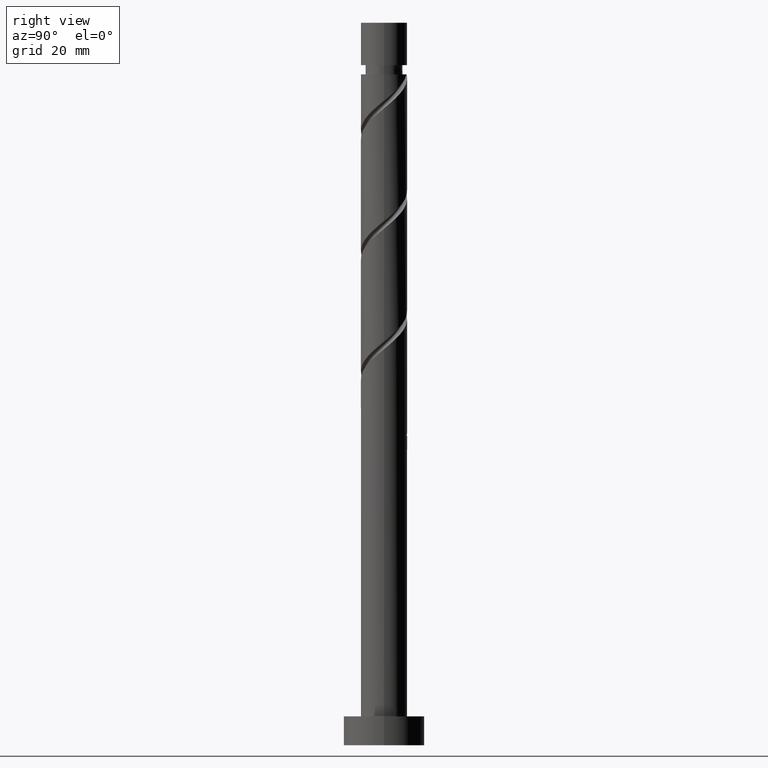
[diagram: clean part render]
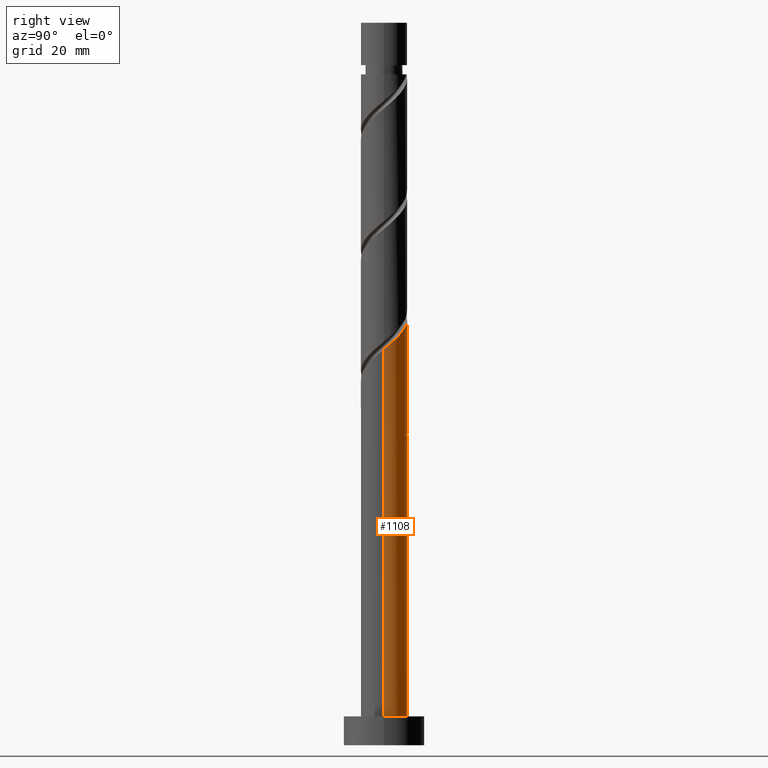
[diagram: same view with one face highlighted and labeled with its STEP entity id]
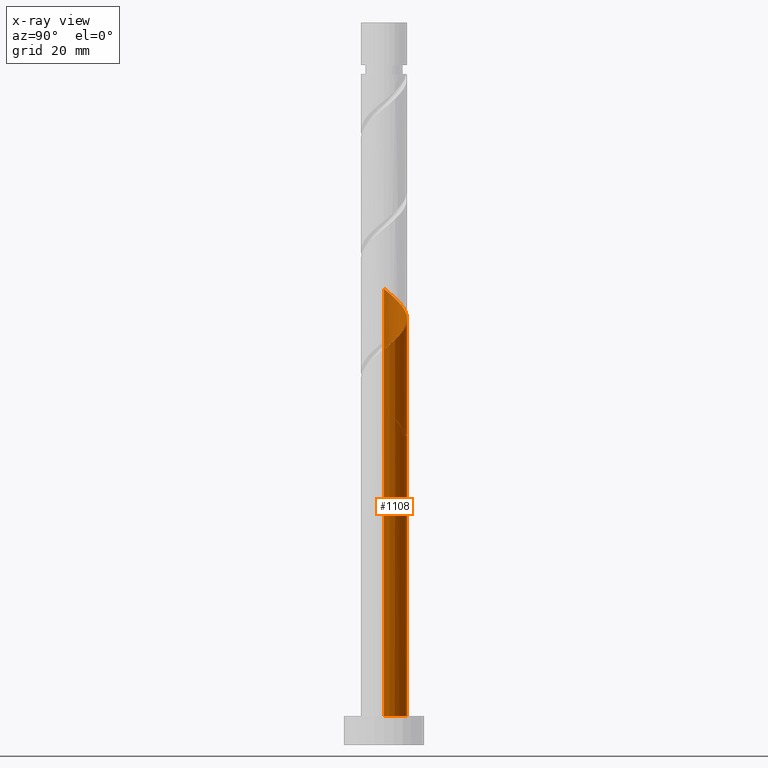
[diagram: x-ray of the same camera — body ghosted, the highlighted face saturated]
A machine part, right view. The second image highlights one B-rep face of the part: STEP entity #1108.
The next image is the same camera in x-ray: the body ghosted, the highlighted face saturated — about 0% of this face is hidden behind the body in this view.
In plain terms, the highlighted cylindrical surface (edge-blend (fillet) strip) has radius 4 mm, axis along (-0, -0, -1).
Its self-contained STEP definition (entity closure, byte-faithful):
#14 = ORIENTED_EDGE ( 'NONE', *, *, #703, .F. ) ;
#59 = CARTESIAN_POINT ( 'NONE',  ( 0.7959899496852967937, 3.920000000000000817, 53.57348467915947055 ) ) ;
#67 = CARTESIAN_POINT ( 'NONE',  ( 4.000000000000005329, 2.698758500977031023E-15, 68.53368223768919165 ) ) ;
#71 = ORIENTED_EDGE ( 'NONE', *, *, #156, .F. ) ;
#108 = CARTESIAN_POINT ( 'NONE',  ( 1.083753322405400121, 3.902159508677979005, 72.84431801249277783 ) ) ;
#116 = CARTESIAN_POINT ( 'NONE',  ( -3.376276034017707151, 2.236544262273469030, 77.01098467915942081 ) ) ;
#118 = DIRECTION ( 'NONE',  ( -0.000000000000000000, -0.000000000000000000, -1.000000000000000000 ) ) ;
#136 = VERTEX_POINT ( 'NONE', #584 ) ;
#139 = DIRECTION ( 'NONE',  ( -1.000000000000000000, 0.000000000000000000, 0.000000000000000000 ) ) ;
#156 = EDGE_CURVE ( 'NONE', #184, #136, #606, .T. ) ;
#168 = CARTESIAN_POINT ( 'NONE',  ( -4.000000000000006217, -3.238510201172437228E-15, 78.95034890435586306 ) ) ;
#173 = EDGE_CURVE ( 'NONE', #1510, #1399, #1237, .T. ) ;
#181 = CARTESIAN_POINT ( 'NONE',  ( -4.000000000000000000, 0.000000000000000000, 5.000000000000000000 ) ) ;
#183 = CARTESIAN_POINT ( 'NONE',  ( -1.660148792339431134, 3.639217771347837971, 55.65681801249279204 ) ) ;
#184 = VERTEX_POINT ( 'NONE', #228 ) ;
#194 = CARTESIAN_POINT ( 'NONE',  ( 0.000000000000000000, 0.000000000000000000, 125.0000000000000000 ) ) ;
#196 = CARTESIAN_POINT ( 'NONE',  ( -2.236544262273464589, 3.376276034017703598, 56.17765134582614905 ) ) ;
#200 = CARTESIAN_POINT ( 'NONE',  ( -1.416856955757479053, 3.793927577315143740, 54.09431801249279204 ) ) ;
#201 = VERTEX_POINT ( 'NONE', #889 ) ;
#227 = AXIS2_PLACEMENT_3D ( 'NONE', #866, #1378, #139 ) ;
#228 = CARTESIAN_POINT ( 'NONE',  ( -0.7959899496852954615, 3.920000000000007034, 53.57348467915947055 ) ) ;
#251 = DIRECTION ( 'NONE',  ( -0.000000000000000000, -0.000000000000000000, -1.000000000000000000 ) ) ;
#261 = EDGE_CURVE ( 'NONE', #1399, #1078, #331, .T. ) ;
#273 = ORIENTED_EDGE ( 'NONE', *, *, #921, .F. ) ;
#305 = CARTESIAN_POINT ( 'NONE',  ( -3.793927577315138855, 1.416856955757478165, 58.26098467915947765 ) ) ;
#312 = CARTESIAN_POINT ( 'NONE',  ( -3.482167122072585830, 1.968378046503445944, 57.74015134582614195 ) ) ;
#322 = CARTESIAN_POINT ( 'NONE',  ( -3.639217771347844188, 1.660148792339434687, 56.69848467915947055 ) ) ;
#324 = DIRECTION ( 'NONE',  ( -0.000000000000000000, -0.000000000000000000, -1.000000000000000000 ) ) ;
#328 = DIRECTION ( 'NONE',  ( -1.000000000000000000, 0.000000000000000000, 0.000000000000000000 ) ) ;
#329 = CARTESIAN_POINT ( 'NONE',  ( -2.519899137249415944, 3.170406666830038578, 75.96931801249279204 ) ) ;
#331 = LINE ( 'NONE', #695, #453 ) ;
#334 = CARTESIAN_POINT ( 'NONE',  ( -3.902159508677978117, 1.083753322405399677, 78.05265134582613484 ) ) ;
#340 = EDGE_CURVE ( 'NONE', #1510, #1029, #1201, .T. ) ;
#415 = EDGE_CURVE ( 'NONE', #1029, #1573, #1553, .T. ) ;
#428 = CARTESIAN_POINT ( 'NONE',  ( 4.000000000000005329, 2.698758500977031023E-15, 68.53368223768919165 ) ) ;
#447 = CARTESIAN_POINT ( 'NONE',  ( 3.793927577315143740, 1.416856955757478387, 69.71931801249277783 ) ) ;
#453 = VECTOR ( 'NONE', #118, 1000.000000000000000 ) ;
#470 = CARTESIAN_POINT ( 'NONE',  ( -3.639217771347844188, 1.660148792339434687, 77.53181801249280625 ) ) ;
#501 = ORIENTED_EDGE ( 'NONE', *, *, #340, .T. ) ;
#504 = CIRCLE ( 'NONE', #227, 4.000000000000000000 ) ;
#528 = EDGE_LOOP ( 'NONE', ( #828, #501, #1134, #273, #71, #801, #14, #1491 ) ) ;
#552 = CARTESIAN_POINT ( 'NONE',  ( -1.968378046503447942, 3.482167122072592491, 54.61515134582613484 ) ) ;
#565 = CARTESIAN_POINT ( 'NONE',  ( -0.1751229436131119532, 4.046072422684866332, 73.88598467915944923 ) ) ;
#579 = VECTOR ( 'NONE', #324, 1000.000000000000000 ) ;
#584 = CARTESIAN_POINT ( 'NONE',  ( -4.000000000000006217, -3.238510201172437228E-15, 58.11701557102252735 ) ) ;
#585 = DIRECTION ( 'NONE',  ( 0.000000000000000000, 0.000000000000000000, 1.000000000000000000 ) ) ;
#606 =( BOUNDED_CURVE ( )  B_SPLINE_CURVE ( 2, ( #682, #200, #552, #936, #1076, #1436, #322, #1106, #1556, #966, #1337 ),
 .UNSPECIFIED., .F., .T. ) 
 B_SPLINE_CURVE_WITH_KNOTS ( ( 3, 2, 2, 2, 2, 3 ),
 ( 0.000000000000000000, 0.01249999999999995559, 0.02500000000000002220, 0.03749999999999997780, 0.05000000000000004441, 0.05453220231385515204 ),
 .UNSPECIFIED. ) 
 CURVE ( )  GEOMETRIC_REPRESENTATION_ITEM ( )  RATIONAL_B_SPLINE_CURVE ( ( 0.9090909090909172763, 0.8978984914501335624, 0.9090909090909172763, 0.8978984914501335624, 0.9090909090909172763, 0.8978984914501335624, 0.9090909090909172763, 0.8978984914501335624, 0.9090909090909172763, 0.9050328050005818081, 0.9039174447099396215 ) ) 
 REPRESENTATION_ITEM ( '' )  );
#615 = AXIS2_PLACEMENT_3D ( 'NONE', #1431, #585, #948 ) ;
#654 = EDGE_CURVE ( 'NONE', #184, #201, #504, .T. ) ;
#668 = CARTESIAN_POINT ( 'NONE',  ( -1.083753322405397235, 3.902159508677975008, 55.13598467915947765 ) ) ;
#670 = CARTESIAN_POINT ( 'NONE',  ( 3.920000000000007034, 0.7959899496852955725, 69.19848467915946344 ) ) ;
#679 = DIRECTION ( 'NONE',  ( -0.000000000000000000, -0.000000000000000000, -1.000000000000000000 ) ) ;
#682 = CARTESIAN_POINT ( 'NONE',  ( -0.7959899496852954615, 3.920000000000007034, 53.57348467915947055 ) ) ;
#691 = CARTESIAN_POINT ( 'NONE',  ( 2.703475464551754914, 2.948087585633561325, 71.28181801249282046 ) ) ;
#695 = CARTESIAN_POINT ( 'NONE',  ( -4.000000000000000000, 0.000000000000000000, 125.0000000000000000 ) ) ;
#703 = EDGE_CURVE ( 'NONE', #1078, #201, #716, .T. ) ;
#716 =( BOUNDED_CURVE ( )  B_SPLINE_CURVE ( 2, ( #1541, #758, #1312, #305, #312, #1074, #1155, #196, #183, #668, #1518, #1184, #59 ),
 .UNSPECIFIED., .F., .T. ) 
 B_SPLINE_CURVE_WITH_KNOTS ( ( 3, 2, 2, 2, 2, 2, 3 ),
 ( 0.9295322023138552492, 0.9375000000000000000, 0.9499999999999999556, 0.9625000000000000222, 0.9749999999999999778, 0.9875000000000000444, 1.000000000000000000 ),
 .UNSPECIFIED. ) 
 CURVE ( )  GEOMETRIC_REPRESENTATION_ITEM ( )  RATIONAL_B_SPLINE_CURVE ( ( 0.9039174447099329601, 0.9019565955404624802, 0.9090909090909108370, 0.8978984914501269010, 0.9090909090909108370, 0.8978984914501269010, 0.9090909090909108370, 0.8978984914501269010, 0.9090909090909108370, 0.8978984914501269010, 0.9090909090909108370, 0.8978984914501269010, 0.9090909090909108370 ) ) 
 REPRESENTATION_ITEM ( '' )  );
#758 = CARTESIAN_POINT ( 'NONE',  ( -3.999999999999999112, 0.4020151261036868928, 59.11231587855522207 ) ) ;
#801 = ORIENTED_EDGE ( 'NONE', *, *, #654, .T. ) ;
#812 = CARTESIAN_POINT ( 'NONE',  ( -2.948087585633562213, 2.703475464551754470, 76.49015134582612063 ) ) ;
#828 = ORIENTED_EDGE ( 'NONE', *, *, #173, .F. ) ;
#866 = CARTESIAN_POINT ( 'NONE',  ( 0.000000000000000000, 0.000000000000000000, 53.57348467915948476 ) ) ;
#882 = CARTESIAN_POINT ( 'NONE',  ( -4.000000000000000000, 0.000000000000000000, 125.0000000000000000 ) ) ;
#889 = CARTESIAN_POINT ( 'NONE',  ( 0.7959899496852967937, 3.920000000000000817, 53.57348467915947055 ) ) ;
#901 = LINE ( 'NONE', #882, #1145 ) ;
#921 = EDGE_CURVE ( 'NONE', #136, #1573, #901, .T. ) ;
#933 = FACE_OUTER_BOUND ( 'NONE', #528, .T. ) ;
#936 = CARTESIAN_POINT ( 'NONE',  ( -2.519899137249415944, 3.170406666830038578, 55.13598467915944923 ) ) ;
#946 = CARTESIAN_POINT ( 'NONE',  ( -1.968378046503447942, 3.482167122072592491, 75.44848467915946344 ) ) ;
#948 = DIRECTION ( 'NONE',  ( 1.000000000000000000, 0.000000000000000000, 0.000000000000000000 ) ) ;
#966 = CARTESIAN_POINT ( 'NONE',  ( -4.000000000000005329, 0.2278949497857356288, 57.92750448181526224 ) ) ;
#1017 = AXIS2_PLACEMENT_3D ( 'NONE', #194, #679, #328 ) ;
#1029 = VERTEX_POINT ( 'NONE', #1424 ) ;
#1053 = CYLINDRICAL_SURFACE ( 'NONE', #1017, 4.000000000000000000 ) ;
#1065 = CARTESIAN_POINT ( 'NONE',  ( -4.000000000000004441, 0.2278949497857418738, 78.76083781514859083 ) ) ;
#1074 = CARTESIAN_POINT ( 'NONE',  ( -3.170406666830034137, 2.519899137249413279, 57.21931801249281335 ) ) ;
#1076 = CARTESIAN_POINT ( 'NONE',  ( -2.948087585633562213, 2.703475464551754470, 55.65681801249279914 ) ) ;
#1078 = VERTEX_POINT ( 'NONE', #1183 ) ;
#1086 = CARTESIAN_POINT ( 'NONE',  ( 0.4543151893961442922, 3.974115965681424001, 73.36515134582612063 ) ) ;
#1106 = CARTESIAN_POINT ( 'NONE',  ( -3.902159508677978117, 1.083753322405399677, 57.21931801249280625 ) ) ;
#1108 = ADVANCED_FACE ( 'NONE', ( #933 ), #1053, .T. ) ;
#1134 = ORIENTED_EDGE ( 'NONE', *, *, #415, .T. ) ;
#1145 = VECTOR ( 'NONE', #251, 1000.000000000000000 ) ;
#1155 = CARTESIAN_POINT ( 'NONE',  ( -2.703475464551749585, 2.948087585633557772, 56.69848467915947055 ) ) ;
#1183 = CARTESIAN_POINT ( 'NONE',  ( -4.000000000000000000, 4.318013601563281980E-15, 59.44662045396307803 ) ) ;
#1184 = CARTESIAN_POINT ( 'NONE',  ( 0.1751229436131134243, 4.046072422684861891, 54.09431801249281335 ) ) ;
#1187 = CARTESIAN_POINT ( 'NONE',  ( -1.416856955757479053, 3.793927577315143740, 74.92765134582610642 ) ) ;
#1201 = LINE ( 'NONE', #1341, #579 ) ;
#1206 = CARTESIAN_POINT ( 'NONE',  ( 1.660148792339435353, 3.639217771347843744, 72.32348467915947765 ) ) ;
#1237 =( BOUNDED_CURVE ( )  B_SPLINE_CURVE ( 2, ( #428, #1444, #670, #447, #1571, #1323, #691, #1452, #1206, #108, #1086, #565, #1307, #1187, #946, #329, #812, #116, #470, #334, #1544, #1065, #1332 ),
 .UNSPECIFIED., .F., .T. ) 
 B_SPLINE_CURVE_WITH_KNOTS ( ( 3, 2, 2, 2, 2, 2, 2, 2, 2, 2, 2, 3 ),
 ( 0.1795322023138550549, 0.1875000000000000000, 0.1999999999999999556, 0.2125000000000000222, 0.2249999999999999778, 0.2375000000000000444, 0.2500000000000000000, 0.2624999999999999556, 0.2750000000000000222, 0.2874999999999999778, 0.3000000000000000444, 0.3045322023138550271 ),
 .UNSPECIFIED. ) 
 CURVE ( )  GEOMETRIC_REPRESENTATION_ITEM ( )  RATIONAL_B_SPLINE_CURVE ( ( 0.9039174447099397325, 0.9019565955404689195, 0.9090909090909172763, 0.8978984914501335624, 0.9090909090909172763, 0.8978984914501335624, 0.9090909090909172763, 0.8978984914501335624, 0.9090909090909172763, 0.8978984914501335624, 0.9090909090909172763, 0.8978984914501335624, 0.9090909090909172763, 0.8978984914501335624, 0.9090909090909172763, 0.8978984914501335624, 0.9090909090909172763, 0.8978984914501335624, 0.9090909090909172763, 0.8978984914501335624, 0.9090909090909172763, 0.9050328050005819192, 0.9039174447099397325 ) ) 
 REPRESENTATION_ITEM ( '' )  );
#1307 = CARTESIAN_POINT ( 'NONE',  ( -0.7959899496852952394, 3.920000000000007034, 74.40681801249279204 ) ) ;
#1312 = CARTESIAN_POINT ( 'NONE',  ( -3.919999999999999929, 0.7959899496852959055, 58.78181801249281335 ) ) ;
#1323 = CARTESIAN_POINT ( 'NONE',  ( 3.170406666830039466, 2.519899137249415499, 70.76098467915946344 ) ) ;
#1332 = CARTESIAN_POINT ( 'NONE',  ( -4.000000000000006217, -3.238510201172437228E-15, 78.95034890435586306 ) ) ;
#1337 = CARTESIAN_POINT ( 'NONE',  ( -4.000000000000006217, -3.238510201172437228E-15, 58.11701557102252735 ) ) ;
#1341 = CARTESIAN_POINT ( 'NONE',  ( 4.000000000000000000, 4.898587196589412829E-16, 125.0000000000000000 ) ) ;
#1378 = DIRECTION ( 'NONE',  ( 0.000000000000000000, -0.000000000000000000, -1.000000000000000000 ) ) ;
#1399 = VERTEX_POINT ( 'NONE', #168 ) ;
#1424 = CARTESIAN_POINT ( 'NONE',  ( 4.000000000000000000, 4.898587196589412829E-16, 5.000000000000000000 ) ) ;
#1431 = CARTESIAN_POINT ( 'NONE',  ( 0.000000000000000000, 0.000000000000000000, 5.000000000000000000 ) ) ;
#1436 = CARTESIAN_POINT ( 'NONE',  ( -3.376276034017707151, 2.236544262273469030, 56.17765134582610642 ) ) ;
#1444 = CARTESIAN_POINT ( 'NONE',  ( 4.000000000000007105, 0.4020151261036761237, 68.86798681309701919 ) ) ;
#1452 = CARTESIAN_POINT ( 'NONE',  ( 2.236544262273469474, 3.376276034017707151, 71.80265134582612063 ) ) ;
#1491 = ORIENTED_EDGE ( 'NONE', *, *, #261, .F. ) ;
#1510 = VERTEX_POINT ( 'NONE', #67 ) ;
#1518 = CARTESIAN_POINT ( 'NONE',  ( -0.4543151893961419052, 3.974115965681417784, 54.61515134582614195 ) ) ;
#1541 = CARTESIAN_POINT ( 'NONE',  ( -4.000000000000000000, 4.318013601563281980E-15, 59.44662045396307803 ) ) ;
#1544 = CARTESIAN_POINT ( 'NONE',  ( -3.974115965681424001, 0.4543151893961434595, 78.57348467915947765 ) ) ;
#1553 = CIRCLE ( 'NONE', #615, 4.000000000000000000 ) ;
#1556 = CARTESIAN_POINT ( 'NONE',  ( -3.974115965681424001, 0.4543151893961434595, 57.74015134582612774 ) ) ;
#1571 = CARTESIAN_POINT ( 'NONE',  ( 3.482167122072593379, 1.968378046503447498, 70.24015134582616326 ) ) ;
#1573 = VERTEX_POINT ( 'NONE', #181 ) ;